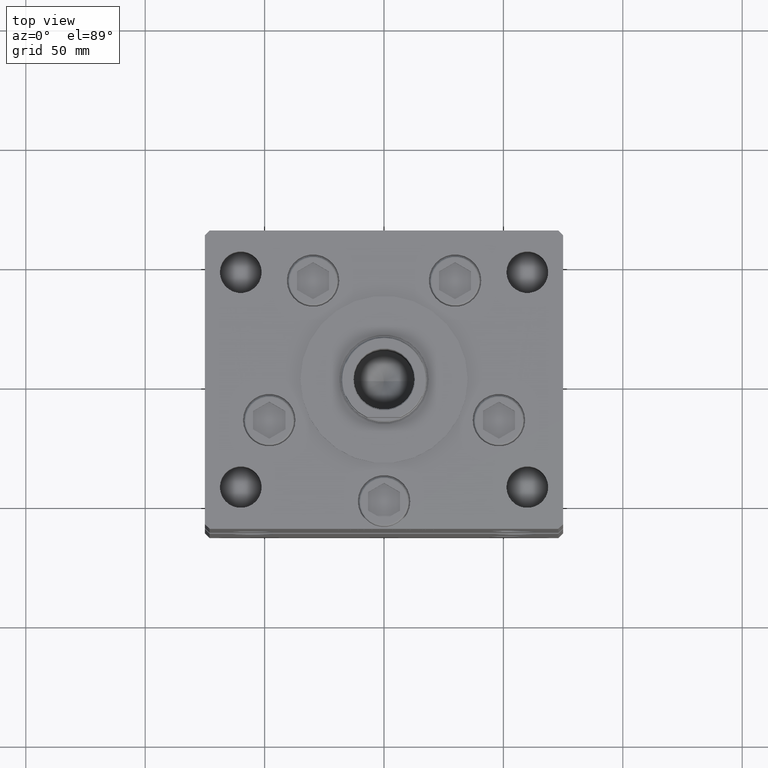
[diagram: clean part render]
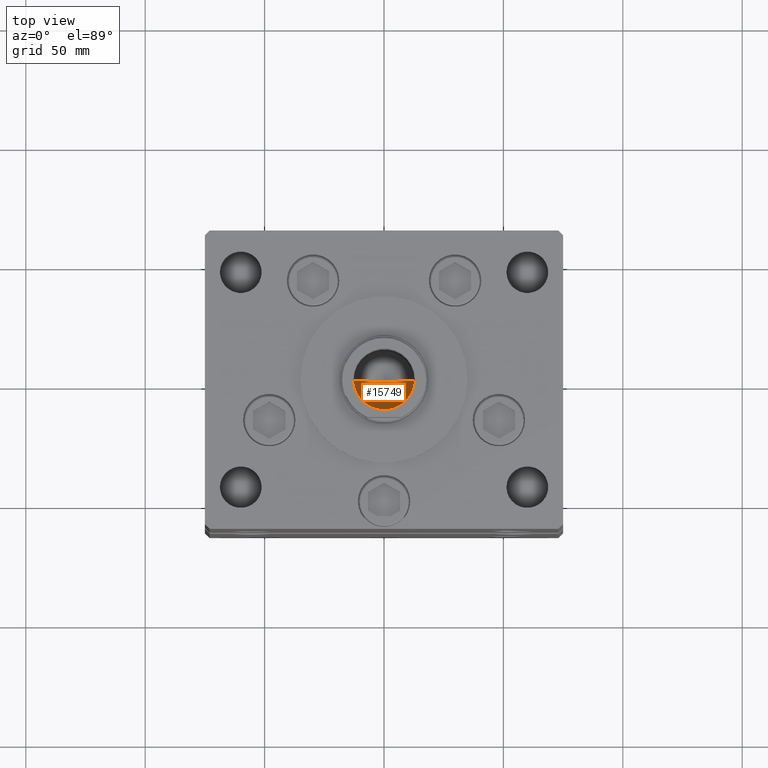
[diagram: same view with one face highlighted and labeled with its STEP entity id]
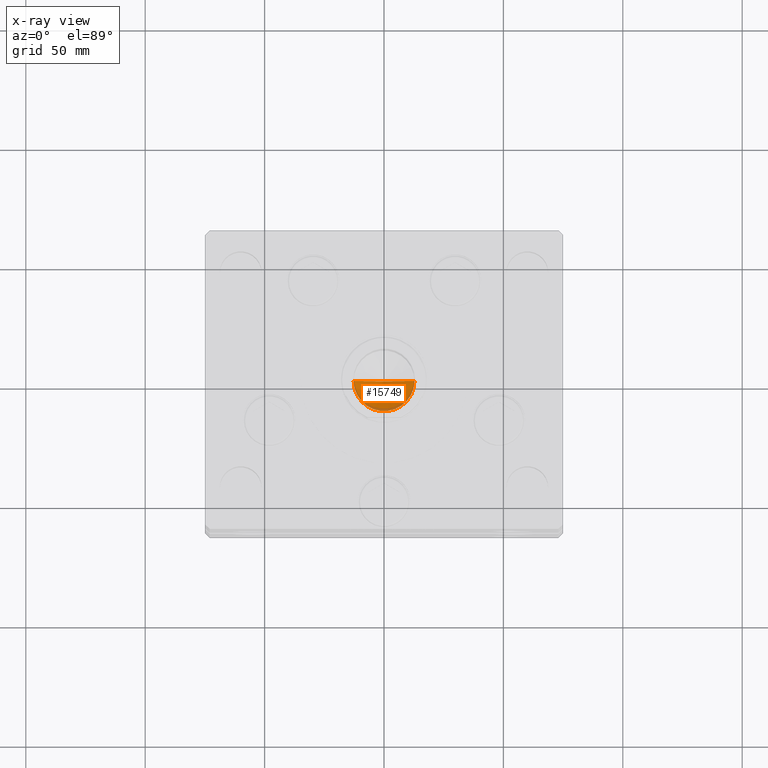
[diagram: x-ray of the same camera — body ghosted, the highlighted face saturated]
A machine part, top view. The second image highlights one B-rep face of the part: STEP entity #15749.
The next image is the same camera in x-ray: the body ghosted, the highlighted face saturated — about 8% of this face is hidden behind the body in this view.
In plain terms, the highlighted conical surface has half-angle 59 deg.
Its self-contained STEP definition (entity closure, byte-faithful):
#3575 = EDGE_LOOP ( 'NONE', ( #12308, #20338, #30135 ) ) ;
#6792 = DIRECTION ( 'NONE',  ( -0.000000000000000000, -0.000000000000000000, 1.000000000000000000 ) ) ;
#12308 = ORIENTED_EDGE ( 'NONE', *, *, #32945, .F. ) ;
#13624 = DIRECTION ( 'NONE',  ( -0.000000000000000000, -0.000000000000000000, 1.000000000000000000 ) ) ;
#14350 = EDGE_CURVE ( 'NONE', #27031, #40990, #36601, .T. ) ;
#15087 = CARTESIAN_POINT ( 'NONE',  ( 0.000000000000000000, 0.000000000000000000, 157.5000000000000284 ) ) ;
#15749 = ADVANCED_FACE ( 'NONE', ( #27685 ), #18650, .F. ) ;
#17888 = CARTESIAN_POINT ( 'NONE',  ( 12.74999999999999112, 0.000000000000000000, 157.5000000000000284 ) ) ;
#18650 = CONICAL_SURFACE ( 'NONE', #46109, 12.74999999999999112, 1.029744258676651869 ) ;
#20338 = ORIENTED_EDGE ( 'NONE', *, *, #21086, .T. ) ;
#21086 = EDGE_CURVE ( 'NONE', #32851, #27031, #21835, .T. ) ;
#21835 = LINE ( 'NONE', #50260, #40119 ) ;
#22916 = AXIS2_PLACEMENT_3D ( 'NONE', #38560, #13624, #25951 ) ;
#25951 = DIRECTION ( 'NONE',  ( 1.000000000000000000, 0.000000000000000000, 0.000000000000000000 ) ) ;
#26462 = LINE ( 'NONE', #17888, #28130 ) ;
#27031 = VERTEX_POINT ( 'NONE', #31400 ) ;
#27685 = FACE_OUTER_BOUND ( 'NONE', #3575, .T. ) ;
#28130 = VECTOR ( 'NONE', #46338, 1000.000000000000000 ) ;
#29615 = DIRECTION ( 'NONE',  ( -0.8571673007021110013, 1.049727191138617093E-16, 0.5150380749100563760 ) ) ;
#30135 = ORIENTED_EDGE ( 'NONE', *, *, #14350, .T. ) ;
#31400 = CARTESIAN_POINT ( 'NONE',  ( -12.74999999999999112, 1.561424668912874125E-15, 157.5000000000000284 ) ) ;
#32851 = VERTEX_POINT ( 'NONE', #40465 ) ;
#32945 = EDGE_CURVE ( 'NONE', #32851, #40990, #26462, .T. ) ;
#35733 = DIRECTION ( 'NONE',  ( 1.000000000000000000, 0.000000000000000000, 0.000000000000000000 ) ) ;
#36601 = CIRCLE ( 'NONE', #22916, 12.74999999999999112 ) ;
#38560 = CARTESIAN_POINT ( 'NONE',  ( 0.000000000000000000, 0.000000000000000000, 157.5000000000000284 ) ) ;
#40119 = VECTOR ( 'NONE', #29615, 1000.000000000000000 ) ;
#40465 = CARTESIAN_POINT ( 'NONE',  ( -1.307202896762960287E-14, 0.000000000000000000, 149.8390271073986071 ) ) ;
#40990 = VERTEX_POINT ( 'NONE', #50343 ) ;
#46109 = AXIS2_PLACEMENT_3D ( 'NONE', #15087, #6792, #35733 ) ;
#46338 = DIRECTION ( 'NONE',  ( 0.8571673007021110013, 0.000000000000000000, 0.5150380749100563760 ) ) ;
#50260 = CARTESIAN_POINT ( 'NONE',  ( -12.74999999999999112, 1.561424668912874125E-15, 157.5000000000000284 ) ) ;
#50343 = CARTESIAN_POINT ( 'NONE',  ( 12.74999999999999112, 0.000000000000000000, 157.5000000000000284 ) ) ;